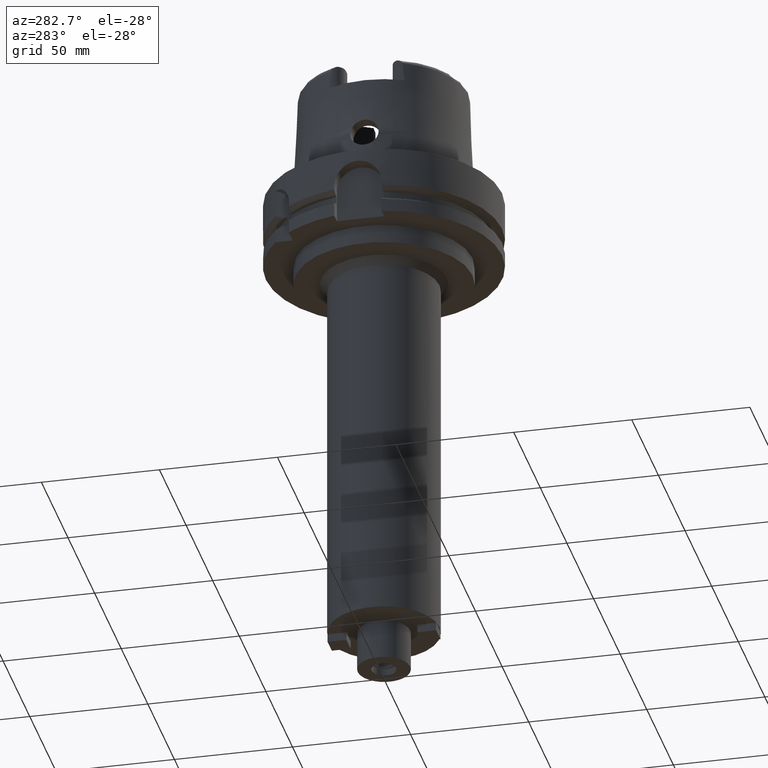
[diagram: clean part render]
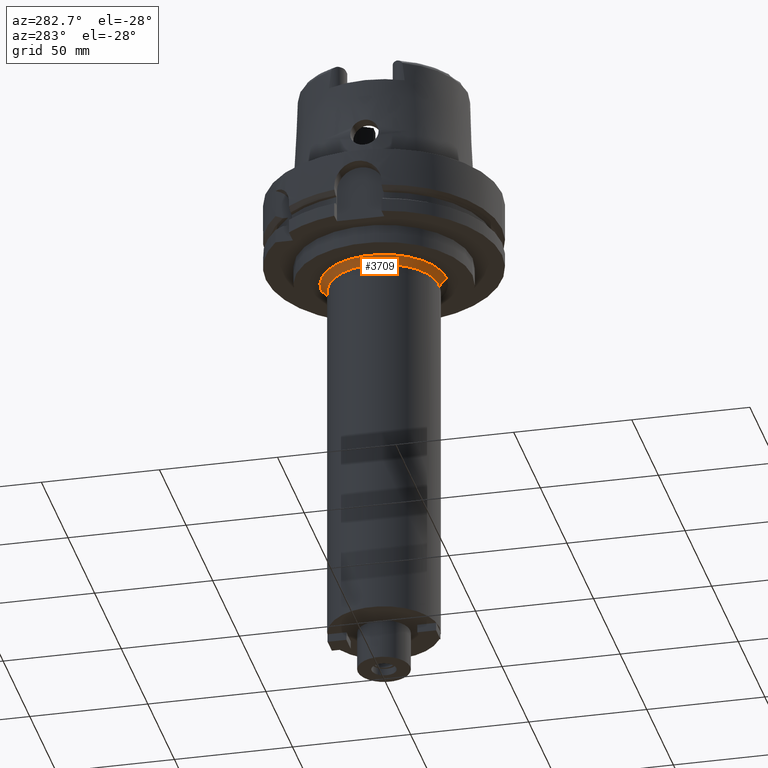
[diagram: same view with one face highlighted and labeled with its STEP entity id]
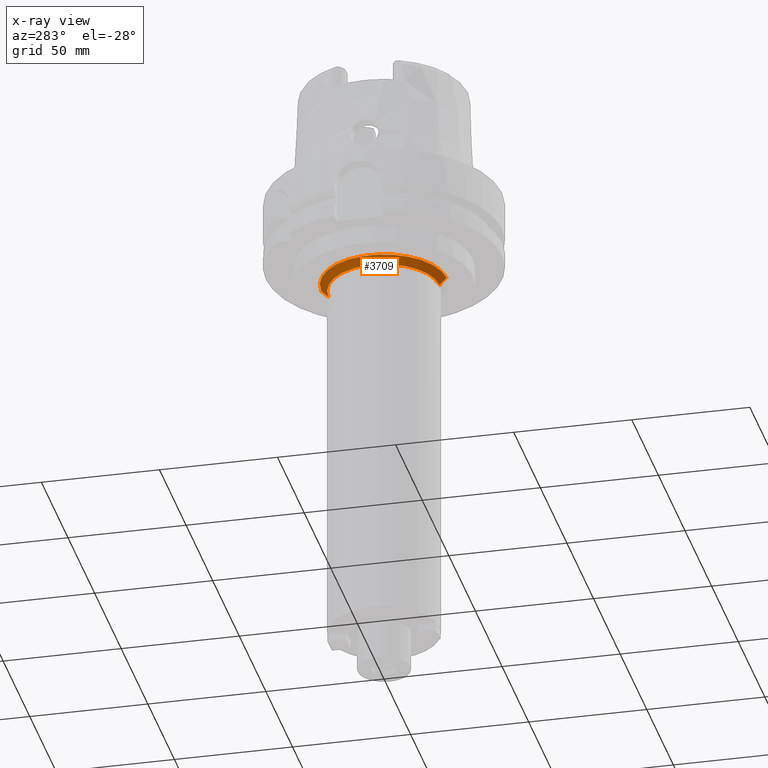
[diagram: x-ray of the same camera — body ghosted, the highlighted face saturated]
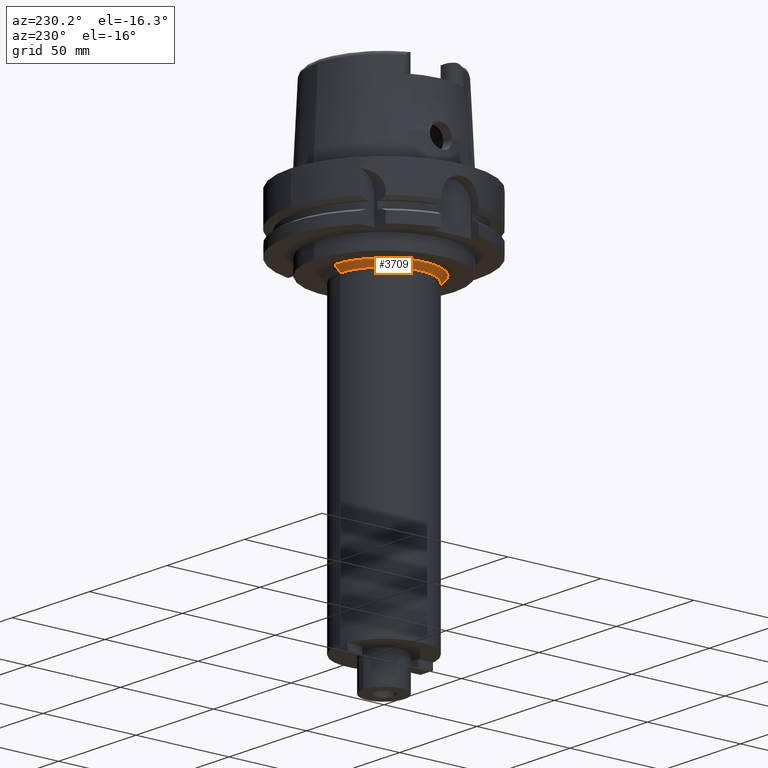
[diagram: same view with one face highlighted and labeled with its STEP entity id]
A machine part, auxiliary view. The second image highlights one B-rep face of the part: STEP entity #3709.
The next image is the same camera in x-ray: the body ghosted, the highlighted face saturated — about 0% of this face is hidden behind the body in this view.
A second angle (auxiliary view) of the same face is appended — the face is thin or edge-on in the first view.
In plain terms, the highlighted conical surface has half-angle 45 deg.
Its self-contained STEP definition (entity closure, byte-faithful):
#1203=DIRECTION('',(0.E0,7.071067811866E-1,-7.071067811865E-1));
#1204=VECTOR('',#1203,4.242640687119E0);
#1205=CARTESIAN_POINT('',(0.E0,-2.65E1,-3.7E1));
#1206=LINE('',#1205,#1204);
#1210=CARTESIAN_POINT('',(0.E0,0.E0,-4.E1));
#1211=DIRECTION('',(0.E0,0.E0,-1.E0));
#1212=DIRECTION('',(0.E0,-1.E0,0.E0));
#1213=AXIS2_PLACEMENT_3D('',#1210,#1211,#1212);
#1218=DIRECTION('',(0.E0,-7.071067811866E-1,-7.071067811865E-1));
#1219=VECTOR('',#1218,4.242640687119E0);
#1220=CARTESIAN_POINT('',(0.E0,2.65E1,-3.7E1));
#1221=LINE('',#1220,#1219);
#1249=CARTESIAN_POINT('',(0.E0,0.E0,-3.7E1));
#1250=DIRECTION('',(0.E0,0.E0,-1.E0));
#1251=DIRECTION('',(0.E0,-1.E0,0.E0));
#1252=AXIS2_PLACEMENT_3D('',#1249,#1250,#1251);
#2628=CARTESIAN_POINT('',(0.E0,2.35E1,-4.E1));
#2629=VERTEX_POINT('',#2628);
#2630=CARTESIAN_POINT('',(0.E0,-2.35E1,-4.E1));
#2631=VERTEX_POINT('',#2630);
#2632=CARTESIAN_POINT('',(0.E0,2.65E1,-3.7E1));
#2633=VERTEX_POINT('',#2632);
#2634=CARTESIAN_POINT('',(0.E0,-2.65E1,-3.7E1));
#2635=VERTEX_POINT('',#2634);
#3695=CARTESIAN_POINT('',(0.E0,0.E0,-3.85E1));
#3696=DIRECTION('',(0.E0,0.E0,1.E0));
#3697=DIRECTION('',(0.E0,1.E0,0.E0));
#3698=AXIS2_PLACEMENT_3D('',#3695,#3696,#3697);
#3699=CONICAL_SURFACE('',#3698,2.5E1,4.5E1);
#3701=ORIENTED_EDGE('',*,*,#3700,.F.);
#3703=ORIENTED_EDGE('',*,*,#3702,.F.);
#3705=ORIENTED_EDGE('',*,*,#3704,.T.);
#3706=ORIENTED_EDGE('',*,*,#3688,.T.);
#3707=EDGE_LOOP('',(#3701,#3703,#3705,#3706));
#3708=FACE_OUTER_BOUND('',#3707,.F.);
#1214=CIRCLE('',#1213,2.35E1);
#1253=CIRCLE('',#1252,2.65E1);
#3688=EDGE_CURVE('',#2631,#2629,#1214,.T.);
#3700=EDGE_CURVE('',#2633,#2629,#1221,.T.);
#3702=EDGE_CURVE('',#2635,#2633,#1253,.T.);
#3704=EDGE_CURVE('',#2635,#2631,#1206,.T.);
#3709=ADVANCED_FACE('',(#3708),#3699,.T.);